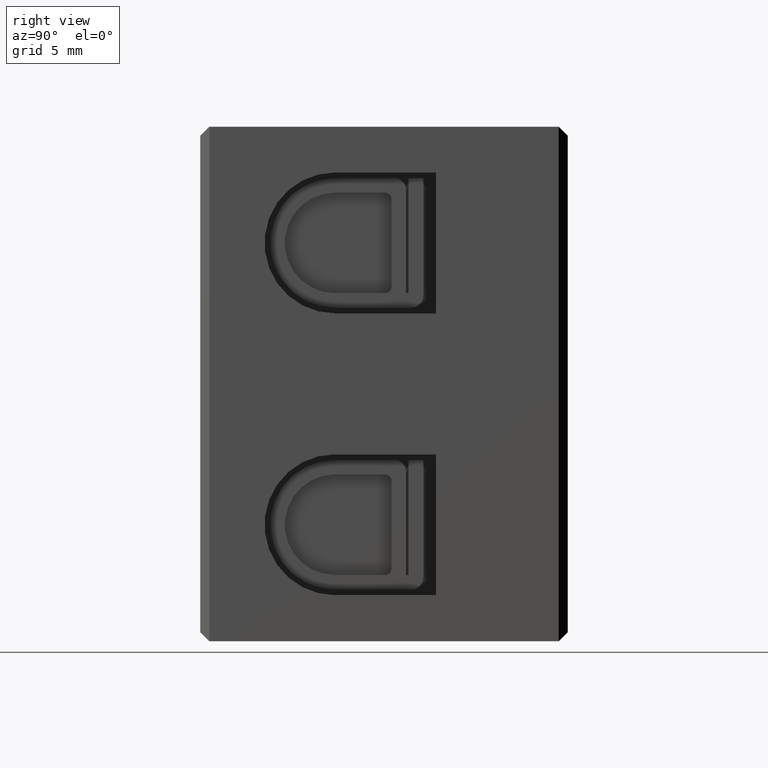
[diagram: clean part render]
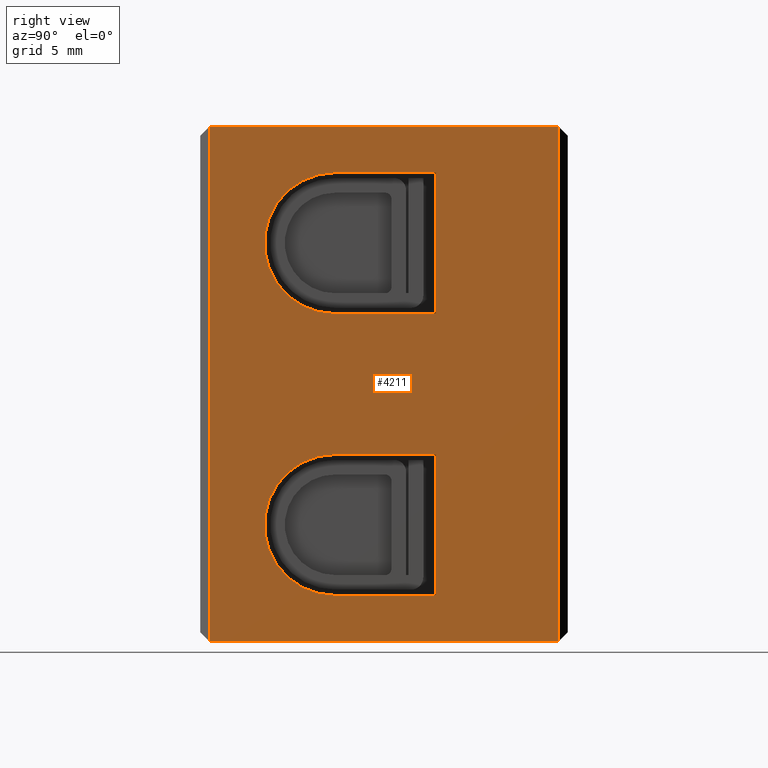
[diagram: same view with one face highlighted and labeled with its STEP entity id]
A machine part, right view. The second image highlights one B-rep face of the part: STEP entity #4211.
In plain terms, the highlighted planar face has unit normal (-1, 0, 0).
Its self-contained STEP definition (entity closure, byte-faithful):
#156 = EDGE_LOOP ( 'NONE', ( #666, #555, #599, #659 ) ) ;
#204 = EDGE_LOOP ( 'NONE', ( #596, #620, #618, #611 ) ) ;
#276 = EDGE_LOOP ( 'NONE', ( #603, #635, #612, #606 ) ) ;
#555 = ORIENTED_EDGE ( 'NONE', *, *, #4654, .T. ) ;
#596 = ORIENTED_EDGE ( 'NONE', *, *, #4574, .F. ) ;
#599 = ORIENTED_EDGE ( 'NONE', *, *, #4653, .F. ) ;
#603 = ORIENTED_EDGE ( 'NONE', *, *, #4615, .F. ) ;
#606 = ORIENTED_EDGE ( 'NONE', *, *, #4587, .F. ) ;
#611 = ORIENTED_EDGE ( 'NONE', *, *, #4642, .F. ) ;
#612 = ORIENTED_EDGE ( 'NONE', *, *, #4573, .F. ) ;
#618 = ORIENTED_EDGE ( 'NONE', *, *, #4568, .F. ) ;
#620 = ORIENTED_EDGE ( 'NONE', *, *, #4607, .F. ) ;
#635 = ORIENTED_EDGE ( 'NONE', *, *, #4614, .F. ) ;
#659 = ORIENTED_EDGE ( 'NONE', *, *, #4624, .T. ) ;
#666 = ORIENTED_EDGE ( 'NONE', *, *, #4640, .F. ) ;
#1697 = VERTEX_POINT ( 'NONE', #2086 ) ;
#1706 = VERTEX_POINT ( 'NONE', #2106 ) ;
#1720 = VERTEX_POINT ( 'NONE', #2110 ) ;
#1726 = VERTEX_POINT ( 'NONE', #2100 ) ;
#1733 = VERTEX_POINT ( 'NONE', #2058 ) ;
#1739 = VERTEX_POINT ( 'NONE', #2063 ) ;
#1755 = VERTEX_POINT ( 'NONE', #4092 ) ;
#1758 = VERTEX_POINT ( 'NONE', #4071 ) ;
#1760 = VERTEX_POINT ( 'NONE', #4079 ) ;
#1761 = VERTEX_POINT ( 'NONE', #4100 ) ;
#1769 = VERTEX_POINT ( 'NONE', #4072 ) ;
#1772 = VERTEX_POINT ( 'NONE', #4088 ) ;
#2058 = CARTESIAN_POINT ( 'NONE',  ( 30.00000000000000000, 19.25000000000000000, -26.75000000000000700 ) ) ;
#2063 = CARTESIAN_POINT ( 'NONE',  ( 30.00000000000000000, 11.00000000000000000, -15.25000000000000000 ) ) ;
#2086 = CARTESIAN_POINT ( 'NONE',  ( 30.00000000000000700, 29.25000000000000000, 7.359022245745361300E-015 ) ) ;
#2100 = CARTESIAN_POINT ( 'NONE',  ( 30.00000000000000000, 11.00000000000000000, -3.750000000000003600 ) ) ;
#2106 = CARTESIAN_POINT ( 'NONE',  ( 30.00000000000000000, 19.24999999999999600, -15.25000000000000000 ) ) ;
#2110 = CARTESIAN_POINT ( 'NONE',  ( 30.00000000000000000, 19.25000000000000000, -3.750000000000003600 ) ) ;
#2574 = CARTESIAN_POINT ( 'NONE',  ( 30.00000000000000000, 11.00000000000000000, -32.50000000000000000 ) ) ;
#2886 = DIRECTION ( 'NONE',  ( 1.000000000000000000, 0.0000000000000000000, 0.0000000000000000000 ) ) ;
#2970 = DIRECTION ( 'NONE',  ( 0.0000000000000000000, 0.0000000000000000000, 1.000000000000000000 ) ) ;
#3086 = LINE ( 'NONE', #3104, #6224 ) ;
#3087 = DIRECTION ( 'NONE',  ( 0.0000000000000000000, 0.0000000000000000000, 1.000000000000000000 ) ) ;
#3098 = LINE ( 'NONE', #3100, #6255 ) ;
#3100 = CARTESIAN_POINT ( 'NONE',  ( 30.00000000000000000, 19.24999999999999600, 0.0000000000000000000 ) ) ;
#3101 = DIRECTION ( 'NONE',  ( 0.0000000000000000000, 0.0000000000000000000, 1.000000000000000000 ) ) ;
#3104 = CARTESIAN_POINT ( 'NONE',  ( 30.00000000000000000, 19.24999999999999600, 0.0000000000000000000 ) ) ;
#3658 = FACE_BOUND ( 'NONE', #276, .T. ) ;
#3661 = DIRECTION ( 'NONE',  ( 0.0000000000000000000, 0.0000000000000000000, 1.000000000000000000 ) ) ;
#3663 = FACE_OUTER_BOUND ( 'NONE', #156, .T. ) ;
#3684 = CARTESIAN_POINT ( 'NONE',  ( 30.00000000000000000, 30.00000000000000000, 0.0000000000000000000 ) ) ;
#3689 = PLANE ( 'NONE',  #5787 ) ;
#3696 = FACE_BOUND ( 'NONE', #204, .T. ) ;
#3700 = DIRECTION ( 'NONE',  ( -1.000000000000000000, 0.0000000000000000000, 0.0000000000000000000 ) ) ;
#4071 = CARTESIAN_POINT ( 'NONE',  ( 30.00000000000000000, 29.25000000000000000, -42.00000000000000000 ) ) ;
#4072 = CARTESIAN_POINT ( 'NONE',  ( 30.00000000000000000, 11.00000000000000000, -38.25000000000000000 ) ) ;
#4079 = CARTESIAN_POINT ( 'NONE',  ( 30.00000000000000000, 19.24999999999999600, -38.25000000000000000 ) ) ;
#4088 = CARTESIAN_POINT ( 'NONE',  ( 30.00000000000000400, 0.7500000000000011100, 4.675621868843737900E-016 ) ) ;
#4092 = CARTESIAN_POINT ( 'NONE',  ( 30.00000000000000700, 0.7500000000000024400, -42.00000000000000700 ) ) ;
#4100 = CARTESIAN_POINT ( 'NONE',  ( 30.00000000000000000, 11.00000000000000000, -26.75000000000000400 ) ) ;
#4211 = ADVANCED_FACE ( 'NONE', ( #3663, #3696, #3658 ), #3689, .F. ) ;
#4568 = EDGE_CURVE ( 'NONE', #1760, #1733, #3086, .T. ) ;
#4573 = EDGE_CURVE ( 'NONE', #1706, #1720, #3098, .T. ) ;
#4574 = EDGE_CURVE ( 'NONE', #1761, #1769, #6219, .T. ) ;
#4587 = EDGE_CURVE ( 'NONE', #1739, #1706, #4932, .T. ) ;
#4607 = EDGE_CURVE ( 'NONE', #1733, #1761, #4965, .T. ) ;
#4614 = EDGE_CURVE ( 'NONE', #1720, #1726, #5000, .T. ) ;
#4615 = EDGE_CURVE ( 'NONE', #1726, #1739, #6303, .T. ) ;
#4624 = EDGE_CURVE ( 'NONE', #1697, #1772, #5025, .T. ) ;
#4640 = EDGE_CURVE ( 'NONE', #1755, #1772, #5041, .T. ) ;
#4642 = EDGE_CURVE ( 'NONE', #1769, #1760, #5126, .T. ) ;
#4653 = EDGE_CURVE ( 'NONE', #1697, #1758, #5107, .T. ) ;
#4654 = EDGE_CURVE ( 'NONE', #1755, #1758, #5099, .T. ) ;
#4905 = CARTESIAN_POINT ( 'NONE',  ( 30.00000000000000000, 30.00000000000000000, -15.25000000000000000 ) ) ;
#4927 = DIRECTION ( 'NONE',  ( 0.0000000000000000000, 1.000000000000000000, -0.0000000000000000000 ) ) ;
#4932 = LINE ( 'NONE', #4905, #6216 ) ;
#4956 = DIRECTION ( 'NONE',  ( -0.0000000000000000000, -1.000000000000000000, 0.0000000000000000000 ) ) ;
#4965 = LINE ( 'NONE', #4981, #6277 ) ;
#4981 = CARTESIAN_POINT ( 'NONE',  ( 30.00000000000000000, 30.00000000000000000, -26.75000000000000400 ) ) ;
#5000 = LINE ( 'NONE', #5013, #6313 ) ;
#5002 = CARTESIAN_POINT ( 'NONE',  ( 30.00000000000000000, 11.00000000000000000, -9.500000000000001800 ) ) ;
#5013 = CARTESIAN_POINT ( 'NONE',  ( 30.00000000000000000, 30.00000000000000000, -3.750000000000003600 ) ) ;
#5016 = DIRECTION ( 'NONE',  ( -0.0000000000000000000, -1.000000000000000000, 0.0000000000000000000 ) ) ;
#5017 = DIRECTION ( 'NONE',  ( 1.000000000000000000, 0.0000000000000000000, 0.0000000000000000000 ) ) ;
#5025 = LINE ( 'NONE', #5058, #6279 ) ;
#5028 = DIRECTION ( 'NONE',  ( 0.0000000000000000000, 0.0000000000000000000, 1.000000000000000000 ) ) ;
#5041 = LINE ( 'NONE', #5073, #6347 ) ;
#5058 = CARTESIAN_POINT ( 'NONE',  ( 30.00000000000000000, 30.00000000000000000, 0.0000000000000000000 ) ) ;
#5071 = DIRECTION ( 'NONE',  ( -0.0000000000000000000, -1.000000000000000000, -0.0000000000000000000 ) ) ;
#5073 = CARTESIAN_POINT ( 'NONE',  ( 30.00000000000000000, 0.7500000000000006700, 0.0000000000000000000 ) ) ;
#5088 = DIRECTION ( 'NONE',  ( -0.0000000000000000000, -0.0000000000000000000, -1.000000000000000000 ) ) ;
#5099 = LINE ( 'NONE', #5133, #6348 ) ;
#5107 = LINE ( 'NONE', #5124, #6315 ) ;
#5118 = DIRECTION ( 'NONE',  ( 0.0000000000000000000, 1.000000000000000000, -0.0000000000000000000 ) ) ;
#5123 = CARTESIAN_POINT ( 'NONE',  ( 30.00000000000000000, 30.00000000000000000, -38.25000000000000000 ) ) ;
#5124 = CARTESIAN_POINT ( 'NONE',  ( 30.00000000000000000, 29.25000000000000000, 0.0000000000000000000 ) ) ;
#5126 = LINE ( 'NONE', #5123, #6344 ) ;
#5128 = DIRECTION ( 'NONE',  ( -0.0000000000000000000, 0.0000000000000000000, 1.000000000000000000 ) ) ;
#5133 = CARTESIAN_POINT ( 'NONE',  ( 30.00000000000000000, 30.00000000000000000, -42.00000000000000000 ) ) ;
#5174 = DIRECTION ( 'NONE',  ( -0.0000000000000000000, 1.000000000000000000, 0.0000000000000000000 ) ) ;
#5787 = AXIS2_PLACEMENT_3D ( 'NONE', #3684, #3700, #3661 ) ;
#6216 = VECTOR ( 'NONE', #4927, 1000.000000000000000 ) ;
#6219 = CIRCLE ( 'NONE', #6245, 5.749999999999998200 ) ;
#6224 = VECTOR ( 'NONE', #3087, 1000.000000000000000 ) ;
#6245 = AXIS2_PLACEMENT_3D ( 'NONE', #2574, #2886, #2970 ) ;
#6255 = VECTOR ( 'NONE', #3101, 1000.000000000000000 ) ;
#6277 = VECTOR ( 'NONE', #4956, 1000.000000000000000 ) ;
#6279 = VECTOR ( 'NONE', #5071, 1000.000000000000000 ) ;
#6303 = CIRCLE ( 'NONE', #6307, 5.749999999999998200 ) ;
#6307 = AXIS2_PLACEMENT_3D ( 'NONE', #5002, #5017, #5028 ) ;
#6313 = VECTOR ( 'NONE', #5016, 1000.000000000000000 ) ;
#6315 = VECTOR ( 'NONE', #5088, 1000.000000000000000 ) ;
#6344 = VECTOR ( 'NONE', #5118, 1000.000000000000000 ) ;
#6347 = VECTOR ( 'NONE', #5128, 1000.000000000000000 ) ;
#6348 = VECTOR ( 'NONE', #5174, 1000.000000000000000 ) ;